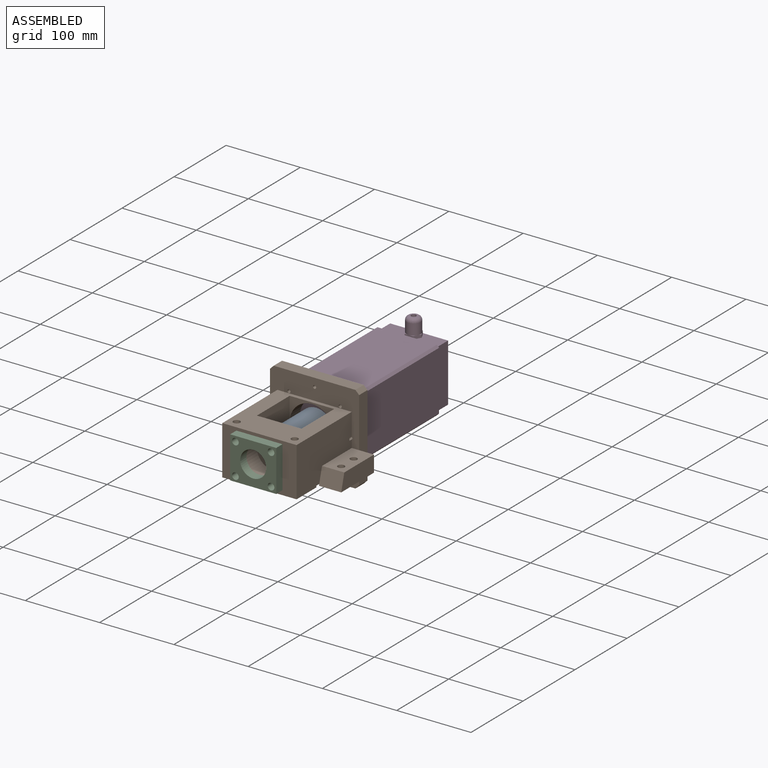
[diagram: assembled view]
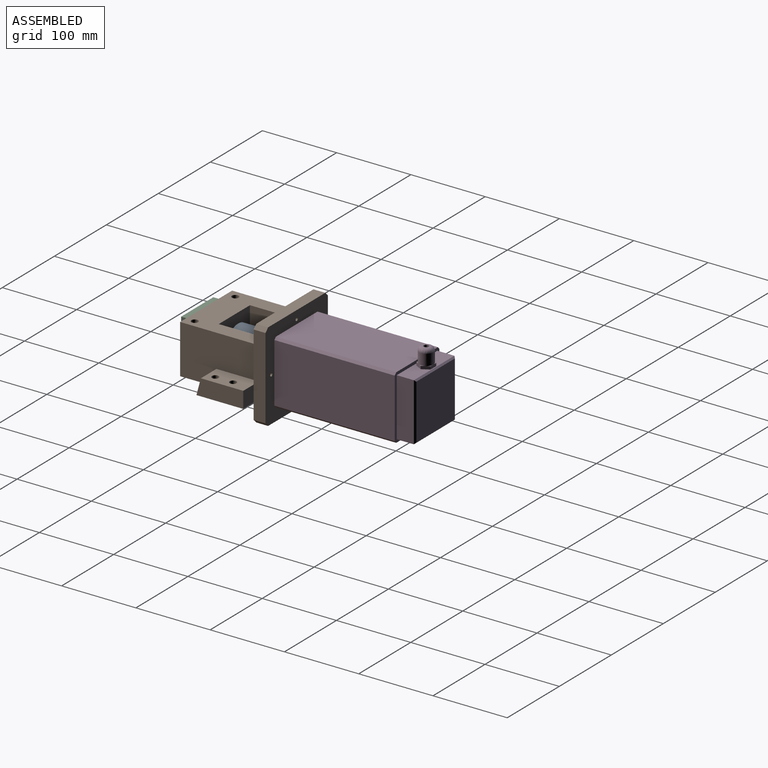
[diagram: assembled view, second angle]
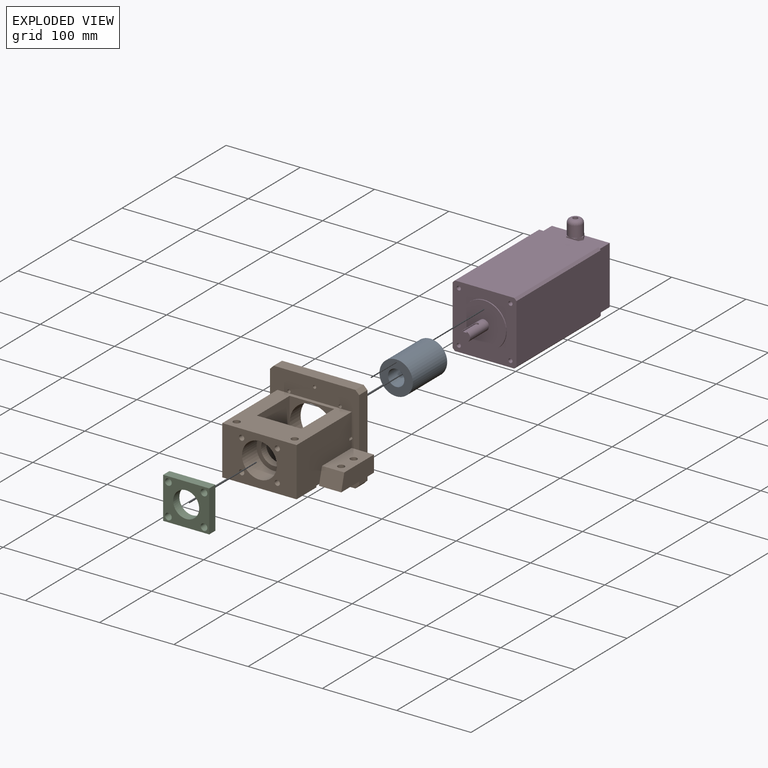
[diagram: exploded view]
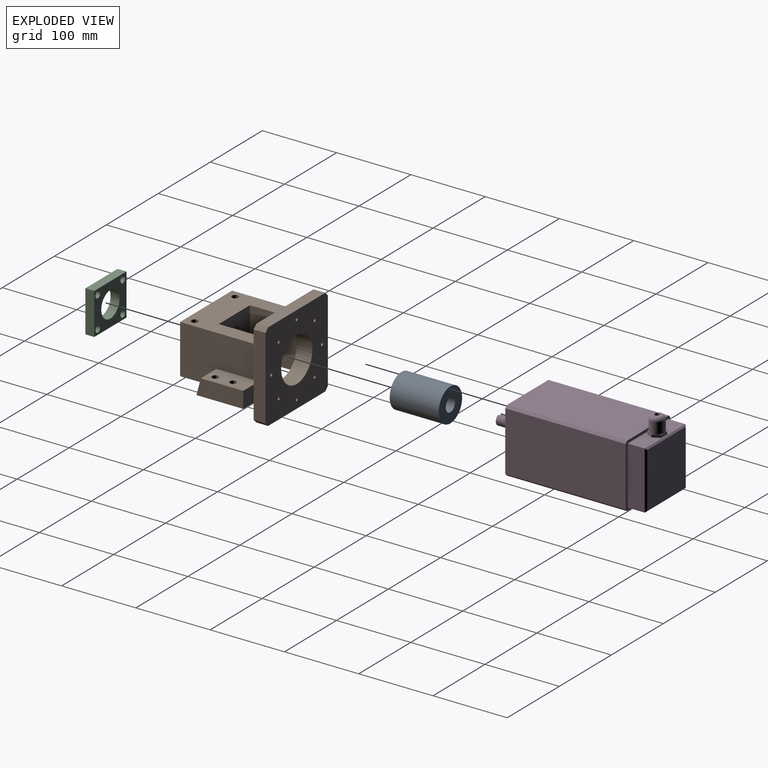
[diagram: exploded view, second angle]
ASSEMBLY  parts=4 mates=3
PART A: 7 faces, bbox 66x45x45 mm
  f0: cylinder r=22.5mm len=66mm, axis (-1,0,0), area 9330.5mm2, adj f1,f2
  f1: plane 45x45mm, normal (1,0,0), area 1336mm2, adj f0,f3
  f2: plane 45x45mm, normal (-1,0,0), area 1210.3mm2, adj f0,f5
  f3: cylinder r=9mm len=25mm, axis (1,0,0), area 1413.7mm2, adj f1,f4
  f4: plane 18x18mm, normal (1,0,0), area 254.5mm2, adj f3
  f5: cylinder r=11mm len=25mm, axis (-1,0,0), area 1727.9mm2, adj f2,f6
  f6: plane 22x22mm, normal (-1,0,0), area 380.1mm2, adj f5
PART B: 62 faces, bbox 160x122x120 mm
  f0: plane 63x22mm, normal (1,0,0), area 1321.2mm2, adj f20,f21,f39,f46
  f1: plane 63x22mm, normal (-1,0,0), area 1321.2mm2, adj f2,f22,f37,f45
  f2: plane 57.11x30mm, normal (0,0,1), area 1585.9mm2, adj f1,f5,f7,f22,f41,f42,f45
  f3: plane 100x68mm, normal (0,0,-1), area 3020mm2, adj f4,f5,f6,f15,f16,f17,f18,f36
  f4: plane 106x66mm, normal (1,0,0), area 5649.7mm2, adj f3,f7,f14,f16,f20,f34,f35,f40
  f5: plane 106x66mm, normal (-1,0,0), area 5649.7mm2, adj f2,f3,f7,f14,f16,f31,f32,f40
  f6: plane 120x28mm, normal (0,-1,0), area 3253.4mm2, adj f3,f9,f10,f11,f27,f28,f33,f36
  f7: plane 120x72mm, normal (0,-1,0), area 4169.4mm2, adj f2,f4,f5,f9,f11,f12,f14,f20
  f8: plane 60x32mm, normal (0,-1,0), area 506.3mm2, adj f14,f15,f17,f19
  f9: plane 110x16mm, normal (-1,0,0), area 1760mm2, adj f6,f7,f13,f22,f47,f48
  f10: plane 110x16mm, normal (0,0,-1), area 1760mm2, adj f6,f13,f47,f49
  f11: plane 110x16mm, normal (1,0,0), area 1760mm2, adj f6,f7,f13,f21,f49,f50
  f12: plane 110x16mm, normal (0,0,1), area 1760mm2, adj f7,f13,f48,f50
  f13: plane 120x120mm, normal (0,1,0), area 11411.7mm2, adj f9,f10,f11,f12,f19,f26,f27,f28
  f14: plane 106x100mm, normal (0,0,1), area 6692.8mm2, adj f4,f5,f7,f8,f15,f16,f17,f51
  f15: plane 64x63mm, normal (1,0,0), area 4032mm2, adj f3,f8,f14,f16,f18
  f16: plane 100x66mm, normal (0,1,0), area 3077.9mm2, adj f3,f4,f5,f14,f15,f17,f25,f40
  f17: plane 64x63mm, normal (-1,0,0), area 4032mm2, adj f3,f8,f14,f16,f18
  f18: plane 60x32mm, normal (0,-1,0), area 506.3mm2, adj f3,f15,f17,f19
  f19: cylinder r=30mm len=60mm, axis (0,1,0), area 3958.4mm2, adj f8,f13,f18
  f20: plane 57.11x30mm, normal (0,0,1), area 1585.9mm2, adj f0,f4,f7,f21,f43,f44,f46
  f21: plane 22x20mm, normal (0,1,0), area 440mm2, adj f0,f11,f20,f39
  f22: plane 22x20mm, normal (0,1,0), area 440mm2, adj f1,f2,f9,f37
  f23: cylinder r=23.5mm len=47mm, axis (0,-1,0), area 4134.3mm2, adj f24,f51
  f24: plane 47x47mm, normal (0,-1,0), area 772.8mm2, adj f23,f25
  f25: cylinder r=17.5mm len=35mm, axis (0,-1,0), area 1099.6mm2, adj f16,f24
  f26: cylinder r=2.1mm len=16mm, axis (0,1,0), area 211.1mm2, adj f7,f13
  f27: cylinder r=2.1mm len=16mm, axis (0,1,0), area 211.1mm2, adj f6,f13
  f28: cylinder r=2.1mm len=16mm, axis (0,1,0), area 211.1mm2, adj f6,f13
  f29: cylinder r=2.1mm len=16mm, axis (0,1,0), area 211.1mm2, adj f7,f13
  f30: cylinder r=2.1mm len=16mm, axis (0,1,0), area 211.1mm2, adj f7,f13
  f31: cone r=0mm half-angle=59deg, axis (0,1,0), area 13.8mm2, adj f5,f32
  f32: cylinder r=2.1mm len=20mm, axis (0,1,0), area 248.2mm2, adj f5,f7,f13,f31
  f33: cylinder r=2.1mm len=16mm, axis (0,1,0), area 211.1mm2, adj f6,f13
  f34: cylinder r=2.1mm len=20mm, axis (0,1,0), area 248.2mm2, adj f4,f7,f13,f35
  f35: cone r=0mm half-angle=59deg, axis (0,1,0), area 13.8mm2, adj f4,f34
  f36: plane 63x2mm, normal (1,0,0), area 125.5mm2, adj f3,f6,f37,f45
  f37: plane 63x30mm, normal (0,0,-1), area 1762.8mm2, adj f1,f6,f22,f36,f41,f42,f45
  f38: plane 63x2mm, normal (-1,0,0), area 125.5mm2, adj f3,f6,f39,f46
  f39: plane 63x30mm, normal (0,0,-1), area 1762.8mm2, adj f0,f6,f21,f38,f43,f44,f46
  f40: plane 100x38mm, normal (0,0,-1), area 3672.8mm2, adj f4,f5,f16,f51,f60,f61
  f41: cylinder r=4.5mm len=22mm, axis (0,0,-1), area 622mm2, adj f2,f37
  f42: cylinder r=4.5mm len=22mm, axis (0,0,-1), area 622mm2, adj f2,f37
  f43: cylinder r=4.5mm len=22mm, axis (0,0,-1), area 622mm2, adj f20,f39
  f44: cylinder r=4.5mm len=22mm, axis (0,0,-1), area 622mm2, adj f20,f39
  f45: plane 30x22mm, normal (0,-0.97,0.26), area 683.3mm2, adj f1,f2,f5,f36,f37
  f46: plane 30x22mm, normal (0,-0.97,0.26), area 683.3mm2, adj f0,f4,f20,f38,f39
  f47: plane 16x5mm, normal (-0.71,0,-0.71), area 113.1mm2, adj f6,f9,f10,f13
  f48: plane 16x5mm, normal (-0.71,0,0.71), area 113.1mm2, adj f7,f9,f12,f13
  f49: plane 16x5mm, normal (0.71,0,-0.71), area 113.1mm2, adj f6,f10,f11,f13
  f50: plane 16x5mm, normal (0.71,0,0.71), area 113.1mm2, adj f7,f11,f12,f13
  f51: plane 100x66mm, normal (0,-1,0), area 4711.1mm2, adj f4,f5,f14,f23,f40,f53,f55,f57
  f52: cone r=0mm half-angle=59deg, axis (0,-1,0), area 44.9mm2, adj f53
  f53: cylinder r=3.5mm len=27mm, axis (0,-1,0), area 593.8mm2, adj f51,f52
  f54: cone r=0mm half-angle=59deg, axis (0,-1,0), area 44.9mm2, adj f55
  f55: cylinder r=3.5mm len=27mm, axis (0,-1,0), area 593.8mm2, adj f51,f54
  f56: cone r=0mm half-angle=59deg, axis (0,-1,0), area 44.9mm2, adj f57
  f57: cylinder r=3.5mm len=27mm, axis (0,-1,0), area 593.8mm2, adj f51,f56
  f58: cone r=0mm half-angle=59deg, axis (0,-1,0), area 44.9mm2, adj f59
  f59: cylinder r=3.5mm len=27mm, axis (0,-1,0), area 593.8mm2, adj f51,f58
  f60: cylinder r=4.5mm len=66mm, axis (0,0,1), area 1866.1mm2, adj f14,f40
  f61: cylinder r=4.5mm len=66mm, axis (0,0,1), area 1866.1mm2, adj f14,f40
PART C: 11 faces, bbox 62x12x56 mm
  f0: plane 56x12mm, normal (-1,0,0), area 672mm2, adj f1,f3,f4,f5
  f1: plane 62x12mm, normal (0,0,-1), area 744mm2, adj f0,f2,f4,f5
  f2: plane 56x12mm, normal (1,0,0), area 672mm2, adj f1,f3,f4,f5
  f3: plane 62x12mm, normal (0,0,1), area 744mm2, adj f0,f2,f4,f5
  f4: plane 62x56mm, normal (0,-1,0), area 2255.4mm2, adj f0,f1,f2,f3,f6,f7,f8,f9
  f5: plane 62x56mm, normal (0,1,0), area 2255.4mm2, adj f0,f1,f2,f3,f6,f7,f8,f9
  f6: cylinder r=4.5mm len=12mm, axis (0,1,0), area 339.3mm2, adj f4,f5
  f7: cylinder r=4.5mm len=12mm, axis (0,1,0), area 339.3mm2, adj f4,f5
  f8: cylinder r=4.5mm len=12mm, axis (0,1,0), area 339.3mm2, adj f4,f5
  f9: cylinder r=4.5mm len=12mm, axis (0,1,0), area 339.3mm2, adj f4,f5
  f10: cylinder r=17.5mm len=35mm, axis (0,-1,0), area 1319.5mm2, adj f4,f5
PART D: 53 faces, bbox 85.9x105.9x225 mm
  f0: cylinder r=3.31mm len=20mm, axis (0,1,0), area 415.5mm2, adj f33,f35
  f1: plane 85.9x85.9mm, normal (0,0,1), area 1276.8mm2, adj f8,f9,f10,f11,f12,f13,f14,f15
  f2: plane 9.54x5.51mm, normal (-0.87,0,-0.5), area 43.5mm2, adj f3,f7,f16,f17,f38
  f3: plane 11.01x3.95mm, normal (0,0,-1), area 43.5mm2, adj f2,f4,f17,f18,f38
  f4: plane 9.54x5.51mm, normal (0.87,0,-0.5), area 43.5mm2, adj f3,f5,f18,f19,f38
  f5: plane 9.54x5.51mm, normal (0.87,0,0.5), area 43.5mm2, adj f4,f6,f19,f20,f38
  f6: plane 11.01x3.95mm, normal (0,0,1), area 43.5mm2, adj f5,f7,f20,f21,f38
  f7: plane 9.54x5.51mm, normal (-0.87,0,0.5), area 43.5mm2, adj f2,f6,f16,f21,f38
  f8: plane 162x79.9mm, normal (0,-1,0), area 12943.8mm2, adj f1,f9,f15,f22
  f9: plane 162x3mm, normal (0.71,-0.71,0), area 687.3mm2, adj f1,f8,f10,f22
  f10: plane 162x79.9mm, normal (1,0,0), area 12943.8mm2, adj f1,f9,f11,f22
  f11: plane 162x3mm, normal (0.71,0.71,0), area 687.3mm2, adj f1,f10,f12,f22
  f12: plane 162x79.9mm, normal (0,1,0), area 12943.8mm2, adj f1,f11,f13,f22
  f13: plane 162x3mm, normal (-0.71,0.71,0), area 687.3mm2, adj f1,f12,f14,f22
  f14: plane 162x79.9mm, normal (-1,0,0), area 12943.8mm2, adj f1,f13,f15,f22
  f15: plane 162x3mm, normal (-0.71,-0.71,0), area 687.3mm2, adj f1,f8,f14,f22
  f16: plane 9.54x2.75mm, normal (0,-1,0), area 4.9mm2, adj f2,f7,f34
  f17: plane 8.26x4.77mm, normal (0,-1,0), area 4.9mm2, adj f2,f3,f34
  f18: plane 8.26x4.77mm, normal (0,-1,0), area 4.9mm2, adj f3,f4,f34
  f19: plane 9.54x2.75mm, normal (0,-1,0), area 4.9mm2, adj f4,f5,f34
  f20: plane 8.26x4.77mm, normal (0,-1,0), area 4.9mm2, adj f5,f6,f34
  f21: plane 8.26x4.77mm, normal (0,-1,0), area 4.9mm2, adj f6,f7,f34
  f22: plane 85.9x85.9mm, normal (0,0,-1), area 4438.3mm2, adj f8,f9,f10,f11,f12,f13,f14,f15
  f23: cylinder r=30mm len=60mm, axis (0,0,1), area 286.5mm2, adj f22,f28
  f24: cylinder r=2.75mm len=162mm, axis (0,0,1), area 2799.2mm2, adj f22,f29
  f25: cylinder r=2.75mm len=162mm, axis (0,0,1), area 2799.2mm2, adj f22,f30
  f26: cylinder r=2.75mm len=162mm, axis (0,0,1), area 2799.2mm2, adj f22,f31
  f27: cylinder r=2.75mm len=162mm, axis (0,0,1), area 2799.2mm2, adj f22,f32
  f28: plane 60x60mm, normal (0,0,-1), area 2673.5mm2, adj f23,f47
  f29: plane 5.5x5.5mm, normal (0,0,-1), area 23.8mm2, adj f24
  f30: plane 5.5x5.5mm, normal (0,0,-1), area 23.8mm2, adj f25
  f31: plane 5.5x5.5mm, normal (0,0,-1), area 23.8mm2, adj f26
  f32: plane 5.5x5.5mm, normal (0,0,-1), area 23.8mm2, adj f27
  f33: plane 6.61x6.61mm, normal (0,-1,0), area 34.4mm2, adj f0
  f34: cylinder r=9.54mm len=19.08mm, axis (0,1,0), area 899mm2, adj f16,f17,f18,f19,f20,f21,f36,f37
  f35: plane 9.08x9.08mm, normal (0,-1,0), area 30.4mm2, adj f0,f36,f37
  f36: revolved ~19.08x9.54mm, area 190.5mm2, adj f34,f35,f37
  f37: revolved ~19.08x9.54mm, area 190.5mm2, adj f34,f35,f36
  f38: plane 78x23mm, normal (0,-1,0), area 1478.8mm2, adj f1,f2,f3,f4,f5,f6,f7,f40
  f39: plane 74x74mm, normal (0,0,1), area 5476mm2, adj f43,f44,f45,f46
  f40: plane 78x23mm, normal (1,0,0), area 1794mm2, adj f1,f38,f42,f46
  f41: plane 78x23mm, normal (-1,0,0), area 1794mm2, adj f1,f38,f42,f44
  f42: plane 78x23mm, normal (0,1,0), area 1794mm2, adj f1,f40,f41,f45
  f43: plane 78x2mm, normal (0,-0.71,0.71), area 215mm2, adj f38,f39,f44,f46
  f44: plane 78x2mm, normal (-0.71,0,0.71), area 215mm2, adj f39,f41,f43,f45
  f45: plane 78x2mm, normal (0,0.71,0.71), area 215mm2, adj f39,f42,f44,f46
  f46: plane 78x2mm, normal (0.71,0,0.71), area 215mm2, adj f39,f40,f43,f45
  f47: cylinder r=7mm len=36.48mm, axis (0,0,-1), area 1479.5mm2, adj f28,f49,f50,f51,f52
  f48: plane 25x5mm, normal (0,-1,0), area 122.3mm2, adj f49,f50,f51,f52
  f49: plane 22.5x1.54mm, normal (-1,0,0), area 34.6mm2, adj f47,f48,f50,f52
  f50: cylinder r=2.5mm len=5mm, axis (0,1,0), area 13.9mm2, adj f47,f48,f49,f51
  f51: plane 22.5x1.54mm, normal (1,0,0), area 34.6mm2, adj f47,f48,f50,f52
  f52: plane 14x13.54mm, normal (0,0,-1), area 144.7mm2, adj f47,f48,f49,f51
PLACE A rot(axis=(-0.58,-0.58,0.58),120deg) t=(-17.44,-24.72,-12.97)mm
PLACE B t=(-17.44,54.28,-12.97)mm
PLACE C rot(axis=(1,0,0),180deg) t=(-17.44,-249.72,-12.97)mm
PLACE D rot(axis=(-1,0,0),90deg) t=(-17.44,54.28,-12.97)mm
MATE fastened A.f0 <-> D.f23  axis (0,1,0) through (-17.44,41.28,-12.97)mm
MATE fastened D.f23 <-> B.f19  axis (0,-1,0) through (-17.44,54.28,-12.97)mm
MATE fastened C.f10 <-> B.f19  axis (0,1,0) through (-17.44,-67.72,-12.97)mm
